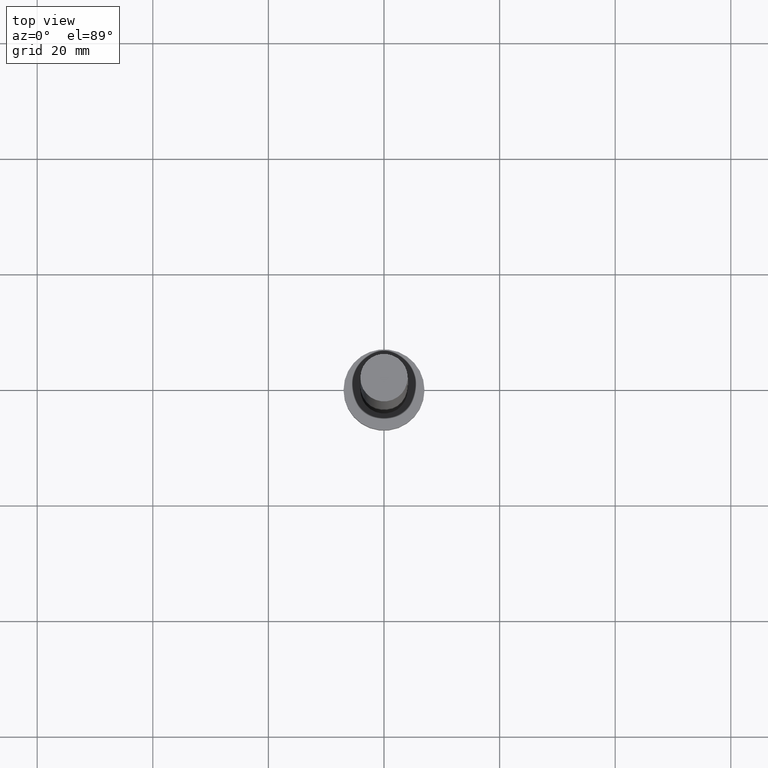
[diagram: clean part render]
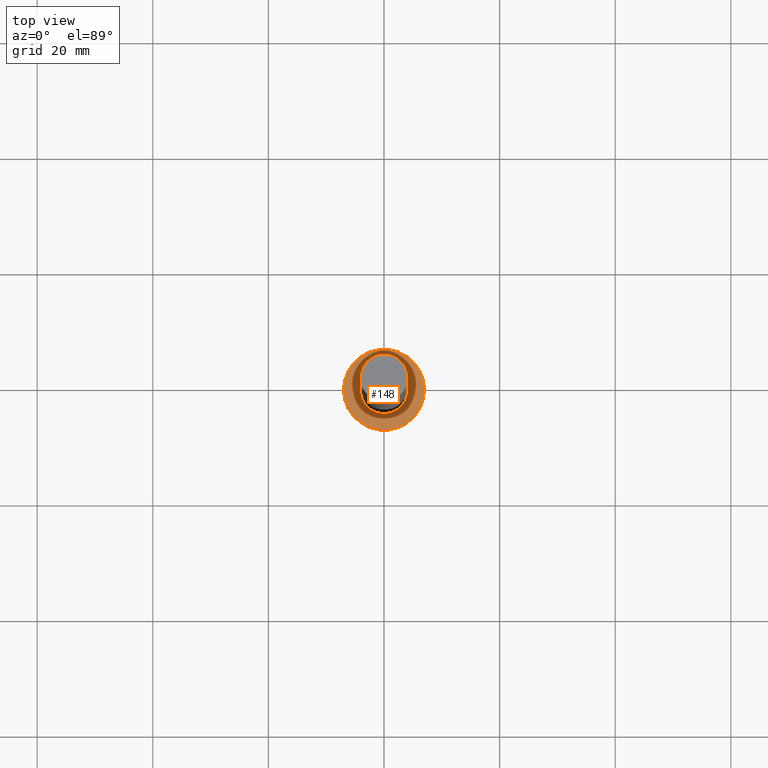
[diagram: same view with one face highlighted and labeled with its STEP entity id]
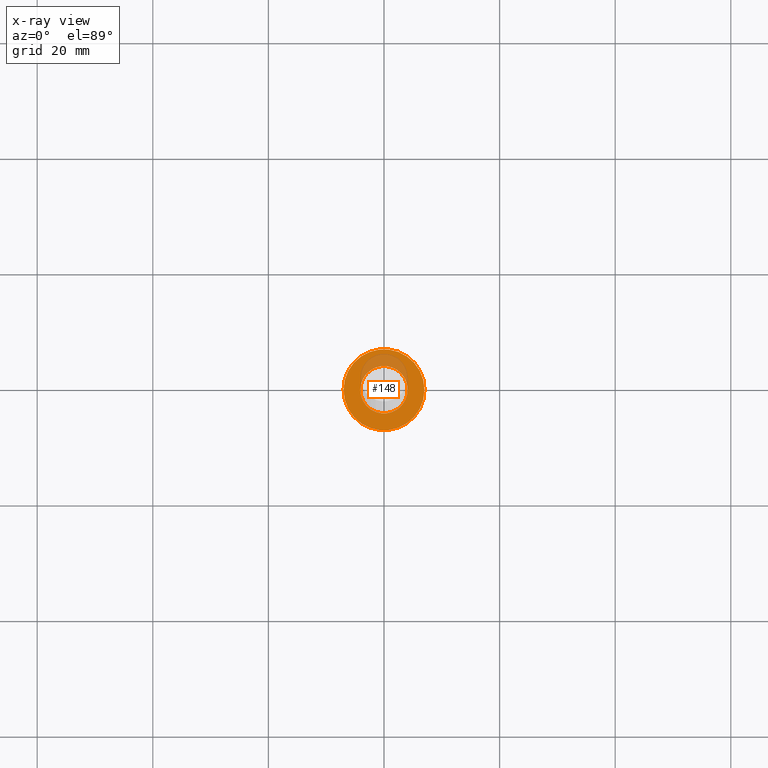
[diagram: x-ray of the same camera — body ghosted, the highlighted face saturated]
A machine part, top view. The second image highlights one B-rep face of the part: STEP entity #148.
The next image is the same camera in x-ray: the body ghosted, the highlighted face saturated — about 17% of this face is hidden behind the body in this view.
In plain terms, the highlighted planar face has unit normal (0, 0, 1).
Its self-contained STEP definition (entity closure, byte-faithful):
#10 = PLANE ( 'NONE',  #102 ) ;
#11 = ORIENTED_EDGE ( 'NONE', *, *, #153, .T. ) ;
#19 = DIRECTION ( 'NONE',  ( 0.000000000000000000, 0.000000000000000000, 1.000000000000000000 ) ) ;
#20 = VERTEX_POINT ( 'NONE', #170 ) ;
#25 = CARTESIAN_POINT ( 'NONE',  ( 0.000000000000000000, 0.000000000000000000, 5.000000000000000000 ) ) ;
#26 = DIRECTION ( 'NONE',  ( 0.000000000000000000, 0.000000000000000000, 1.000000000000000000 ) ) ;
#34 = ORIENTED_EDGE ( 'NONE', *, *, #233, .F. ) ;
#35 = AXIS2_PLACEMENT_3D ( 'NONE', #106, #26, #84 ) ;
#38 = DIRECTION ( 'NONE',  ( 0.000000000000000000, 0.000000000000000000, 1.000000000000000000 ) ) ;
#44 = ORIENTED_EDGE ( 'NONE', *, *, #52, .T. ) ;
#52 = EDGE_CURVE ( 'NONE', #254, #61, #120, .T. ) ;
#59 = DIRECTION ( 'NONE',  ( 1.000000000000000000, 0.000000000000000000, 0.000000000000000000 ) ) ;
#61 = VERTEX_POINT ( 'NONE', #160 ) ;
#74 = CIRCLE ( 'NONE', #35, 4.099999999999999645 ) ;
#75 = FACE_BOUND ( 'NONE', #247, .T. ) ;
#84 = DIRECTION ( 'NONE',  ( 1.000000000000000000, 0.000000000000000000, 0.000000000000000000 ) ) ;
#94 = DIRECTION ( 'NONE',  ( 1.000000000000000000, 0.000000000000000000, -0.000000000000000000 ) ) ;
#97 = CARTESIAN_POINT ( 'NONE',  ( 0.000000000000000000, 0.000000000000000000, 5.000000000000000000 ) ) ;
#102 = AXIS2_PLACEMENT_3D ( 'NONE', #169, #249, #94 ) ;
#106 = CARTESIAN_POINT ( 'NONE',  ( 0.000000000000000000, 0.000000000000000000, 5.000000000000000000 ) ) ;
#120 = CIRCLE ( 'NONE', #168, 7.000000000000000000 ) ;
#135 = CARTESIAN_POINT ( 'NONE',  ( 7.000000000000000000, 8.572527594031473190E-16, 5.000000000000000000 ) ) ;
#136 = EDGE_CURVE ( 'NONE', #229, #20, #198, .T. ) ;
#139 = DIRECTION ( 'NONE',  ( 1.000000000000000000, 0.000000000000000000, 0.000000000000000000 ) ) ;
#148 = ADVANCED_FACE ( 'NONE', ( #75, #195 ), #10, .T. ) ;
#153 = EDGE_CURVE ( 'NONE', #61, #254, #194, .T. ) ;
#160 = CARTESIAN_POINT ( 'NONE',  ( -7.000000000000000000, 0.000000000000000000, 5.000000000000000000 ) ) ;
#167 = ORIENTED_EDGE ( 'NONE', *, *, #136, .F. ) ;
#168 = AXIS2_PLACEMENT_3D ( 'NONE', #25, #217, #139 ) ;
#169 = CARTESIAN_POINT ( 'NONE',  ( 0.000000000000000000, 0.000000000000000000, 5.000000000000000000 ) ) ;
#170 = CARTESIAN_POINT ( 'NONE',  ( 4.099999999999999645, 5.021051876504147385E-16, 5.000000000000000000 ) ) ;
#176 = AXIS2_PLACEMENT_3D ( 'NONE', #207, #19, #181 ) ;
#181 = DIRECTION ( 'NONE',  ( 1.000000000000000000, 0.000000000000000000, 0.000000000000000000 ) ) ;
#182 = EDGE_LOOP ( 'NONE', ( #11, #44 ) ) ;
#194 = CIRCLE ( 'NONE', #176, 7.000000000000000000 ) ;
#195 = FACE_OUTER_BOUND ( 'NONE', #182, .T. ) ;
#198 = CIRCLE ( 'NONE', #223, 4.099999999999999645 ) ;
#207 = CARTESIAN_POINT ( 'NONE',  ( 0.000000000000000000, 0.000000000000000000, 5.000000000000000000 ) ) ;
#217 = DIRECTION ( 'NONE',  ( 0.000000000000000000, 0.000000000000000000, 1.000000000000000000 ) ) ;
#223 = AXIS2_PLACEMENT_3D ( 'NONE', #97, #38, #59 ) ;
#229 = VERTEX_POINT ( 'NONE', #252 ) ;
#233 = EDGE_CURVE ( 'NONE', #20, #229, #74, .T. ) ;
#247 = EDGE_LOOP ( 'NONE', ( #167, #34 ) ) ;
#249 = DIRECTION ( 'NONE',  ( 0.000000000000000000, 0.000000000000000000, 1.000000000000000000 ) ) ;
#252 = CARTESIAN_POINT ( 'NONE',  ( -4.099999999999999645, 0.000000000000000000, 5.000000000000000000 ) ) ;
#254 = VERTEX_POINT ( 'NONE', #135 ) ;